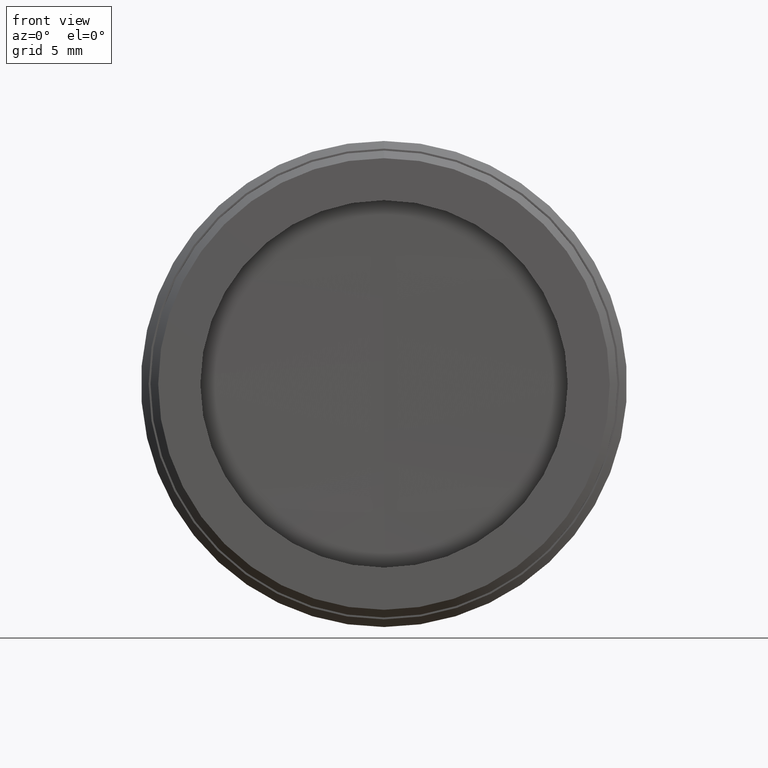
[diagram: clean part render]
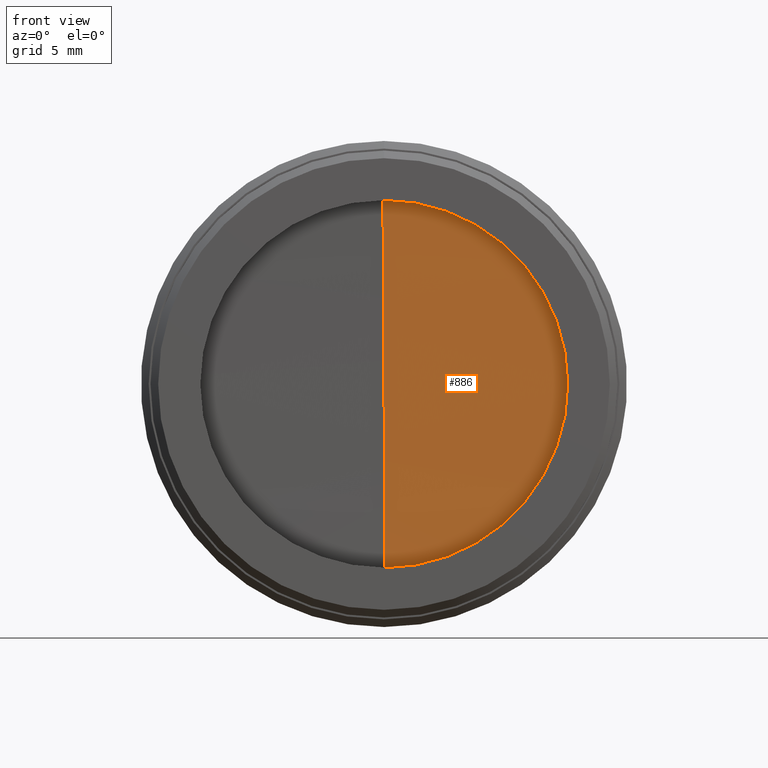
[diagram: same view with one face highlighted and labeled with its STEP entity id]
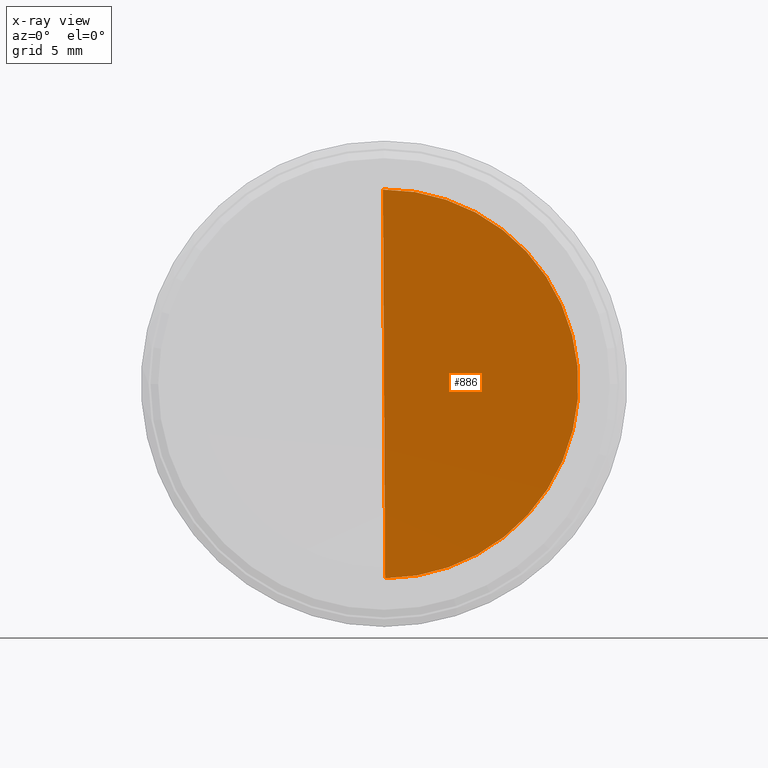
[diagram: x-ray of the same camera — body ghosted, the highlighted face saturated]
A machine part, front view. The second image highlights one B-rep face of the part: STEP entity #886.
The next image is the same camera in x-ray: the body ghosted, the highlighted face saturated — about 0% of this face is hidden behind the body in this view.
In plain terms, the highlighted spherical surface has radius 600 mm.
Its self-contained STEP definition (entity closure, byte-faithful):
#49 = DIRECTION ( 'NONE',  ( -3.659266894335748121E-32, 1.000000000000000000, -1.878145495644178128E-16 ) ) ;
#83 = EDGE_CURVE ( 'NONE', #546, #1045, #1256, .T. ) ;
#169 = CARTESIAN_POINT ( 'NONE',  ( -63.03918853982518300, 6.153165921879422129, 32.62627389262220845 ) ) ;
#263 = ORIENTED_EDGE ( 'NONE', *, *, #1029, .F. ) ;
#509 = AXIS2_PLACEMENT_3D ( 'NONE', #753, #49, #984 ) ;
#529 = AXIS2_PLACEMENT_3D ( 'NONE', #975, #965, #620 ) ;
#539 = ORIENTED_EDGE ( 'NONE', *, *, #83, .T. ) ;
#546 = VERTEX_POINT ( 'NONE', #169 ) ;
#620 = DIRECTION ( 'NONE',  ( 0.005561413065056665210, -1.850371707708594316E-16, -0.9999845352227803019 ) ) ;
#699 = AXIS2_PLACEMENT_3D ( 'NONE', #1404, #717, #1156 ) ;
#717 = DIRECTION ( 'NONE',  ( -0.9999845352227803019, -1.044514289755347016E-18, -0.005561413065056792712 ) ) ;
#753 = CARTESIAN_POINT ( 'NONE',  ( -62.96855859389896892, 6.153165921879422129, 19.92647029529289782 ) ) ;
#886 = ADVANCED_FACE ( 'NONE', ( #1319 ), #1417, .F. ) ;
#965 = DIRECTION ( 'NONE',  ( 1.542999752835028277E-20, -1.000000000000000000, 1.850401181876537477E-16 ) ) ;
#975 = CARTESIAN_POINT ( 'NONE',  ( -62.96855859389896892, -593.7124106867470346, 19.92647029529301506 ) ) ;
#984 = DIRECTION ( 'NONE',  ( -0.005561413065056295714, 2.048885995248197167E-16, 0.9999845352227803019 ) ) ;
#1029 = EDGE_CURVE ( 'NONE', #546, #1045, #1409, .T. ) ;
#1045 = VERTEX_POINT ( 'NONE', #1236 ) ;
#1156 = DIRECTION ( 'NONE',  ( 0.005561413065056791845, -1.850371707708594316E-16, -0.9999845352227801909 ) ) ;
#1236 = CARTESIAN_POINT ( 'NONE',  ( -62.89792864797274774, 6.153165921879422129, 7.226666697963588959 ) ) ;
#1238 = EDGE_LOOP ( 'NONE', ( #263, #539 ) ) ;
#1256 = CIRCLE ( 'NONE', #699, 600.0000000000000000 ) ;
#1319 = FACE_OUTER_BOUND ( 'NONE', #1238, .T. ) ;
#1404 = CARTESIAN_POINT ( 'NONE',  ( -62.96855859389896892, -593.7124106867470346, 19.92647029529301506 ) ) ;
#1409 = CIRCLE ( 'NONE', #509, 12.70000000000000107 ) ;
#1417 = SPHERICAL_SURFACE ( 'NONE', #529, 600.0000000000000000 ) ;